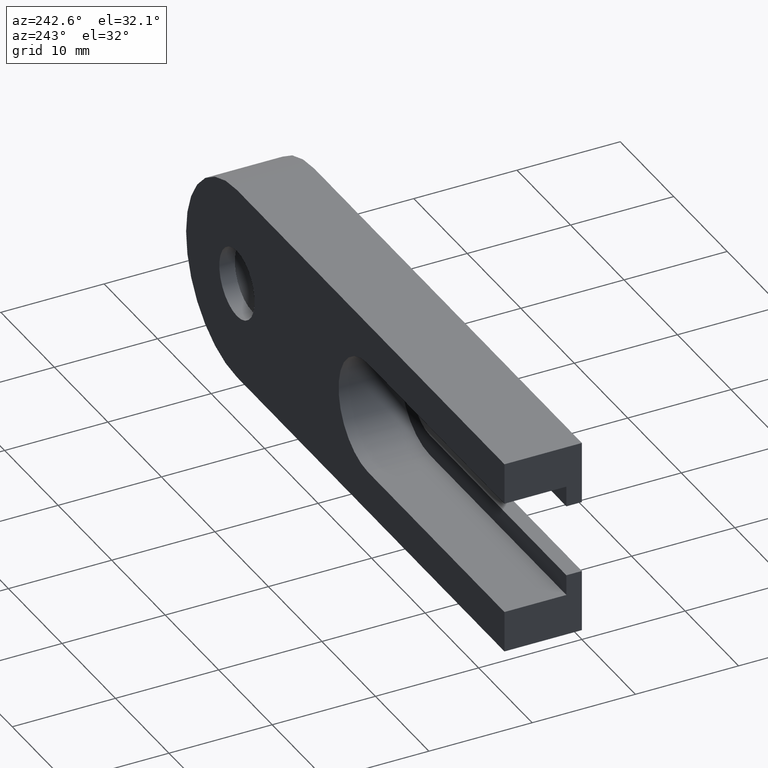
[diagram: clean part render]
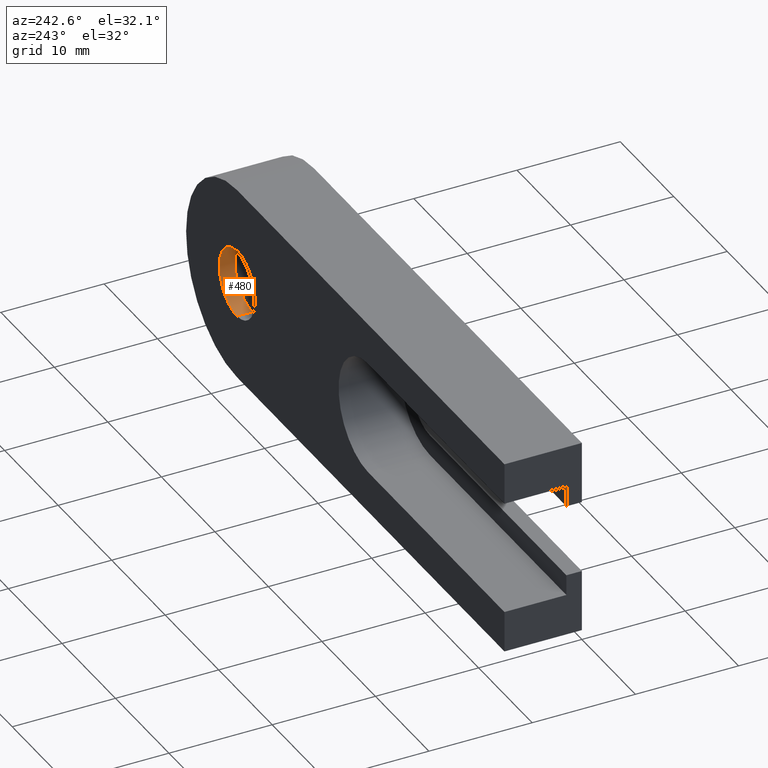
[diagram: same view with one face highlighted and labeled with its STEP entity id]
A machine part, auxiliary view. The second image highlights one B-rep face of the part: STEP entity #480.
In plain terms, the highlighted cylindrical surface (partial cylindrical patch) has radius 3.3 mm, axis along (-0, -1, -0).
Its self-contained STEP definition (entity closure, byte-faithful):
#6 = CYLINDRICAL_SURFACE ( 'NONE', #172, 3.299999999999998900 ) ;
#13 = ORIENTED_EDGE ( 'NONE', *, *, #491, .F. ) ;
#15 = DIRECTION ( 'NONE',  ( -0.0000000000000000000, -1.000000000000000000, -0.0000000000000000000 ) ) ;
#27 = ORIENTED_EDGE ( 'NONE', *, *, #482, .F. ) ;
#42 = DIRECTION ( 'NONE',  ( -0.0000000000000000000, -1.000000000000000000, -0.0000000000000000000 ) ) ;
#46 = AXIS2_PLACEMENT_3D ( 'NONE', #83, #447, #654 ) ;
#83 = CARTESIAN_POINT ( 'NONE',  ( 0.0000000000000000000, 7.499999999999999100, 0.0000000000000000000 ) ) ;
#123 = CIRCLE ( 'NONE', #46, 3.299999999999998500 ) ;
#134 = CARTESIAN_POINT ( 'NONE',  ( 0.0000000000000000000, 6.000000000000000000, 0.0000000000000000000 ) ) ;
#136 = AXIS2_PLACEMENT_3D ( 'NONE', #134, #545, #352 ) ;
#148 = CARTESIAN_POINT ( 'NONE',  ( 4.041334437186264000E-016, 7.499999999999999100, 3.299999999999998500 ) ) ;
#169 = LINE ( 'NONE', #533, #411 ) ;
#172 = AXIS2_PLACEMENT_3D ( 'NONE', #476, #15, #222 ) ;
#184 = FACE_OUTER_BOUND ( 'NONE', #661, .T. ) ;
#185 = EDGE_CURVE ( 'NONE', #473, #276, #169, .T. ) ;
#222 = DIRECTION ( 'NONE',  ( 0.0000000000000000000, 0.0000000000000000000, -1.000000000000000000 ) ) ;
#248 = ORIENTED_EDGE ( 'NONE', *, *, #514, .T. ) ;
#274 = VERTEX_POINT ( 'NONE', #148 ) ;
#276 = VERTEX_POINT ( 'NONE', #450 ) ;
#300 = CARTESIAN_POINT ( 'NONE',  ( 4.041334437186264500E-016, 6.000000000000000000, 3.299999999999998900 ) ) ;
#318 = VERTEX_POINT ( 'NONE', #300 ) ;
#325 = CARTESIAN_POINT ( 'NONE',  ( 0.0000000000000000000, 7.499999999999999100, -3.299999999999998500 ) ) ;
#352 = DIRECTION ( 'NONE',  ( 0.0000000000000000000, 0.0000000000000000000, -1.000000000000000000 ) ) ;
#410 = LINE ( 'NONE', #569, #484 ) ;
#411 = VECTOR ( 'NONE', #488, 1000.000000000000000 ) ;
#447 = DIRECTION ( 'NONE',  ( -0.0000000000000000000, -1.000000000000000000, -0.0000000000000000000 ) ) ;
#450 = CARTESIAN_POINT ( 'NONE',  ( 0.0000000000000000000, 6.000000000000000000, -3.299999999999998900 ) ) ;
#473 = VERTEX_POINT ( 'NONE', #325 ) ;
#476 = CARTESIAN_POINT ( 'NONE',  ( 0.0000000000000000000, 0.0000000000000000000, 0.0000000000000000000 ) ) ;
#480 = ADVANCED_FACE ( 'NONE', ( #184 ), #6, .F. ) ;
#482 = EDGE_CURVE ( 'NONE', #473, #274, #123, .T. ) ;
#484 = VECTOR ( 'NONE', #42, 1000.000000000000000 ) ;
#488 = DIRECTION ( 'NONE',  ( -0.0000000000000000000, -1.000000000000000000, -0.0000000000000000000 ) ) ;
#491 = EDGE_CURVE ( 'NONE', #274, #318, #410, .T. ) ;
#514 = EDGE_CURVE ( 'NONE', #276, #318, #575, .T. ) ;
#533 = CARTESIAN_POINT ( 'NONE',  ( 0.0000000000000000000, 0.0000000000000000000, -3.299999999999998900 ) ) ;
#545 = DIRECTION ( 'NONE',  ( -0.0000000000000000000, -1.000000000000000000, -0.0000000000000000000 ) ) ;
#569 = CARTESIAN_POINT ( 'NONE',  ( 4.041334437186264500E-016, 0.0000000000000000000, 3.299999999999998900 ) ) ;
#575 = CIRCLE ( 'NONE', #136, 3.299999999999998900 ) ;
#637 = ORIENTED_EDGE ( 'NONE', *, *, #185, .T. ) ;
#654 = DIRECTION ( 'NONE',  ( 0.0000000000000000000, 0.0000000000000000000, -1.000000000000000000 ) ) ;
#661 = EDGE_LOOP ( 'NONE', ( #13, #27, #637, #248 ) ) ;